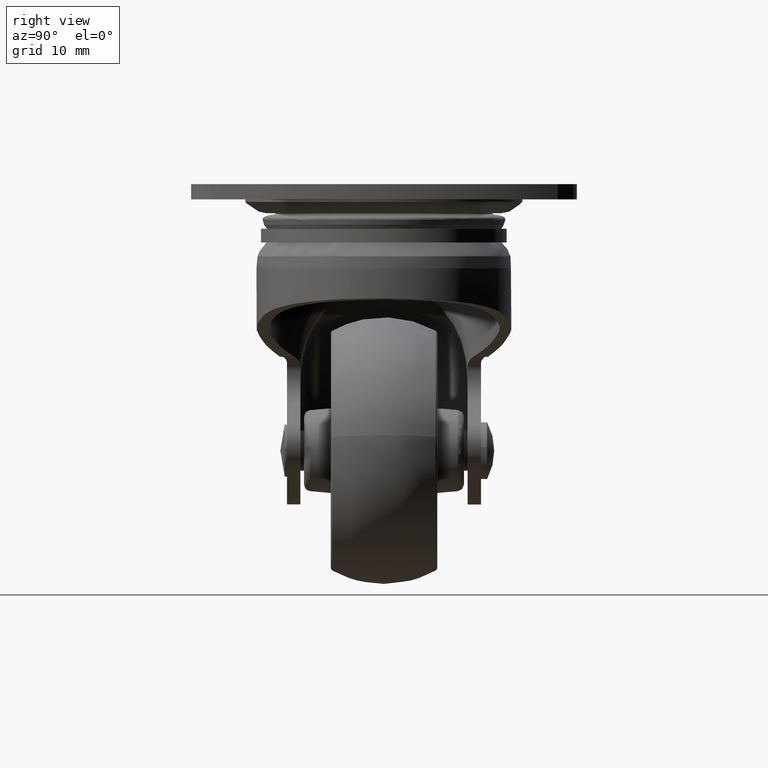
[diagram: clean part render]
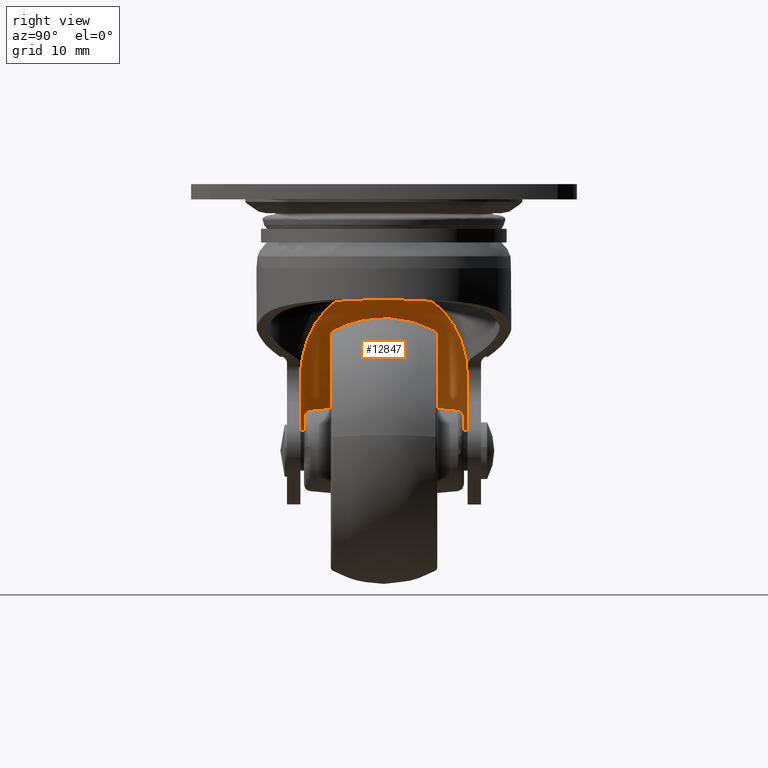
[diagram: same view with one face highlighted and labeled with its STEP entity id]
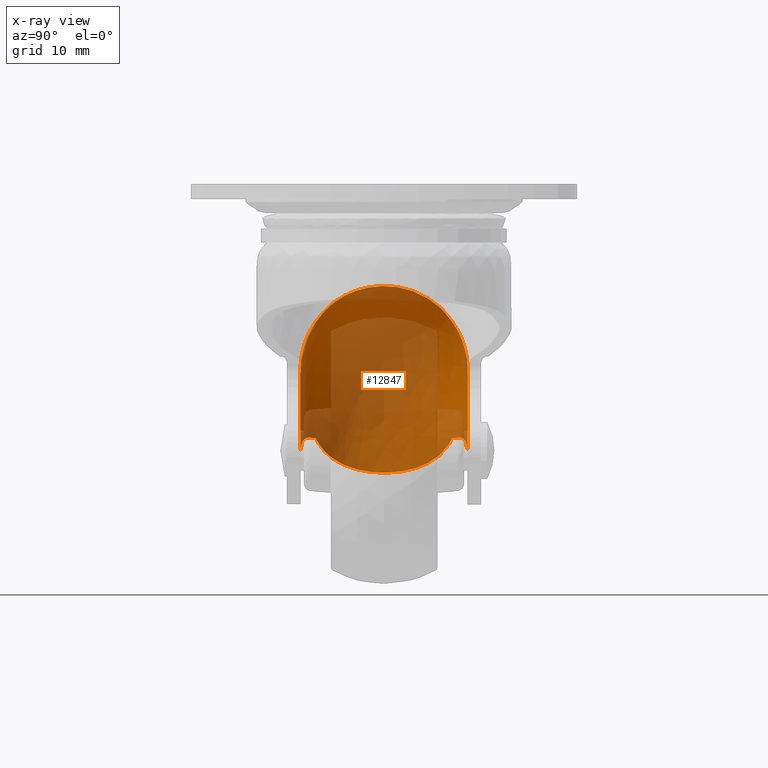
[diagram: x-ray of the same camera — body ghosted, the highlighted face saturated]
A machine part, right view. The second image highlights one B-rep face of the part: STEP entity #12847.
The next image is the same camera in x-ray: the body ghosted, the highlighted face saturated — about 71% of this face is hidden behind the body in this view.
In plain terms, the highlighted face is a freeform B-spline surface patch.
Its self-contained STEP definition (entity closure, byte-faithful):
#12061=CARTESIAN_POINT('',(-13.161448661214900,-12.550000000000001,-29.333893467984002));
#12062=VERTEX_POINT('',#12061);
#12074=CARTESIAN_POINT('',(-13.161448661214900,12.550000000000001,-29.333893467984002));
#12075=VERTEX_POINT('',#12074);
#12076=CARTESIAN_POINT('',(-13.161448661214900,12.550000000000001,-29.333893467984002));
#12077=CARTESIAN_POINT('',(-13.183847619922540,12.550000000000001,-29.099161205735172));
#12078=CARTESIAN_POINT('',(-13.211446397097101,12.545453838519130,-28.865321687266281));
#12079=CARTESIAN_POINT('',(-13.276723983359091,12.527515720516289,-28.399374500162040));
#12080=CARTESIAN_POINT('',(-13.314423820523480,12.514114597322960,-28.167150270794060));
#12081=CARTESIAN_POINT('',(-13.442002738938070,12.460872270933701,-27.473722363226589));
#12082=CARTESIAN_POINT('',(-13.545453704098851,12.408438853016721,-27.020385841915481));
#12083=CARTESIAN_POINT('',(-13.784197698013910,12.271406548507001,-26.129758595202240));
#12084=CARTESIAN_POINT('',(-13.919495426331441,12.186793034932871,-25.692472173004070));
#12085=CARTESIAN_POINT('',(-14.217633644276050,11.985161395502701,-24.832676067670072));
#12086=CARTESIAN_POINT('',(-14.380479727401600,11.868138600663540,-24.410169011000189));
#12087=CARTESIAN_POINT('',(-14.598870615136480,11.700448244436281,-23.890768907709159));
#12088=CARTESIAN_POINT('',(-14.643290744334781,11.665834551645160,-23.787334713602679));
#12089=CARTESIAN_POINT('',(-14.733131544660971,11.594759539812550,-23.582285010211042));
#12090=CARTESIAN_POINT('',(-14.869546739996149,11.485258429876980,-23.277071812442539));
#12091=CARTESIAN_POINT('',(-15.010572715484070,11.367060815563621,-22.978771425042002));
#12092=CARTESIAN_POINT('',(-15.297899419181180,11.118880768911600,-22.391020016011002));
#12093=CARTESIAN_POINT('',(-15.496471345719970,10.937749815510880,-22.010960197103799));
#12094=CARTESIAN_POINT('',(-15.903407099388209,10.542246776187399,-21.273093261511718));
#12095=CARTESIAN_POINT('',(-16.111780532400971,10.327879796527069,-20.915288642487770));
#12096=CARTESIAN_POINT('',(-16.428721978969250,9.979085969659277,-20.394879016122431));
#12097=CARTESIAN_POINT('',(-16.535117348188969,9.858251381883843,-20.224104841132299));
#12098=CARTESIAN_POINT('',(-16.748810889242812,9.607039843041411,-19.888110749921001));
#12099=CARTESIAN_POINT('',(-16.855409364195619,9.477483781565518,-19.723987708009190));
#12100=CARTESIAN_POINT('',(-17.173667519892678,9.076658168778760,-19.242999235059319));
#12101=CARTESIAN_POINT('',(-17.383792145387769,8.793264357702599,-18.937482019273300));
#12102=CARTESIAN_POINT('',(-17.795783992117901,8.191761900440010,-18.356232855721998));
#12103=CARTESIAN_POINT('',(-17.997664489061840,7.873667151216800,-18.080495973924840));
#12104=CARTESIAN_POINT('',(-18.242126275433218,7.452121857270873,-17.754813519690298));
#12105=CARTESIAN_POINT('',(-18.290623051093458,7.366612783177341,-17.690629425472221));
#12106=CARTESIAN_POINT('',(-18.386751218332531,7.193122312869709,-17.564188078783811));
#12107=CARTESIAN_POINT('',(-18.434438086910848,7.105032211052274,-17.501859384693699));
#12108=CARTESIAN_POINT('',(-18.575381042413770,6.838287048155994,-17.318715458198909));
#12109=CARTESIAN_POINT('',(-18.666686007895130,6.656879147409573,-17.201517369258049));
#12110=CARTESIAN_POINT('',(-18.931930756308919,6.101693215450641,-16.864505056274560));
#12111=CARTESIAN_POINT('',(-19.097221719177629,5.716988063362493,-16.659220913054170));
#12112=CARTESIAN_POINT('',(-19.324787152509050,5.116586678019555,-16.380814115848668));
#12113=CARTESIAN_POINT('',(-19.397242648154130,4.912554122776250,-16.292944173715171));
#12114=CARTESIAN_POINT('',(-19.500384565843330,4.600384838927234,-16.168718113736329));
#12115=CARTESIAN_POINT('',(-19.533841139421838,4.495307640482481,-16.128573525196860));
#12116=CARTESIAN_POINT('',(-19.598825352907429,4.283057052779585,-16.050855063869498));
#12117=CARTESIAN_POINT('',(-19.630403814003181,4.175700431671834,-16.013220887671110));
#12118=CARTESIAN_POINT('',(-19.782596186387011,3.635898496610632,-15.832391162301541));
#12119=CARTESIAN_POINT('',(-19.885701323642959,3.196266545270175,-15.711646167186149));
#12120=CARTESIAN_POINT('',(-20.052755774618639,2.301262016617411,-15.517220714916210));
#12121=CARTESIAN_POINT('',(-20.116717345125881,1.845893067720527,-15.443532175511679));
#12122=CARTESIAN_POINT('',(-20.170439533455131,1.266367341027908,-15.381772460023370));
#12123=CARTESIAN_POINT('',(-20.179869541585841,1.149944797667372,-15.370944102374750));
#12124=CARTESIAN_POINT('',(-20.196043547773751,0.916045771680178,-15.352383634499381));
#12125=CARTESIAN_POINT('',(-20.202796937957920,0.798342582884374,-15.344640756122400));
#12126=CARTESIAN_POINT('',(-20.218860505980199,0.445338387112968,-15.326230589783060));
#12127=CARTESIAN_POINT('',(-20.223969167337369,0.210857036659877,-15.320384700115961));
#12128=CARTESIAN_POINT('',(-20.222902204469229,-0.490089136965193,-15.321606332922180));
#12129=CARTESIAN_POINT('',(-20.200367742399781,-0.954064080090620,-15.347357179176440));
#12130=CARTESIAN_POINT('',(-20.134783631014020,-1.645152230708293,-15.422768167381429));
#12131=CARTESIAN_POINT('',(-20.107616327061631,-1.874700517823076,-15.454055352145680));
#12132=CARTESIAN_POINT('',(-20.058950606237659,-2.217797031020003,-15.510306005047880));
#12133=CARTESIAN_POINT('',(-20.041409076760679,-2.331958093552134,-15.530610719977989));
#12134=CARTESIAN_POINT('',(-20.003688291657870,-2.559869142672834,-15.574359382177891));
#12135=CARTESIAN_POINT('',(-19.983479516092139,-2.673771765845328,-15.597837713135171));
#12136=CARTESIAN_POINT('',(-19.876204085219040,-3.240335613836149,-15.722748633416680));
#12137=CARTESIAN_POINT('',(-19.770945441871518,-3.682126457274895,-15.846111820299839));
#12138=CARTESIAN_POINT('',(-19.617253038981499,-4.220777933764845,-16.028885202434260));
#12139=CARTESIAN_POINT('',(-19.585361176516869,-4.327970104260392,-16.066927683633509));
#12140=CARTESIAN_POINT('',(-19.519625651173129,-4.540298799492446,-16.145620634364761));
#12141=CARTESIAN_POINT('',(-19.485832219044202,-4.645286825818607,-16.186210661217480));
#12142=CARTESIAN_POINT('',(-19.381811727391462,-4.956836406843079,-16.311626837372060));
#12143=CARTESIAN_POINT('',(-19.308947016819602,-5.159987093488653,-16.400095001420070));
#12144=CARTESIAN_POINT('',(-19.080787271771840,-5.756560355688435,-16.679558061172639));
#12145=CARTESIAN_POINT('',(-18.915949681109709,-6.137144346281213,-16.884562316694019));
#12146=CARTESIAN_POINT('',(-18.565288240994182,-6.866941804261762,-17.330619612061351));
#12147=CARTESIAN_POINT('',(-18.379448042957019,-7.216141623980685,-17.571682705336190));
#12148=CARTESIAN_POINT('',(-18.087860030614589,-7.717701957303782,-17.960432008755230));
#12149=CARTESIAN_POINT('',(-17.988523227031099,-7.881174523378395,-18.094551441628060));
#12150=CARTESIAN_POINT('',(-17.836660628642399,-8.120913949561214,-18.302640759678450));
#12151=CARTESIAN_POINT('',(-17.785515719872190,-8.199986753809215,-18.373222913367592));
#12152=CARTESIAN_POINT('',(-17.682599458226228,-8.355919548325506,-18.516344914079561));
#12153=CARTESIAN_POINT('',(-17.630937219880501,-8.432618267559171,-18.588731918813689));
#12154=CARTESIAN_POINT('',(-17.371778122608760,-8.809970473752838,-18.954757358396350));
#12155=CARTESIAN_POINT('',(-17.161749431933160,-9.092261244093386,-19.260628252376542));
#12156=CARTESIAN_POINT('',(-16.740462264488610,-9.621629215298313,-19.898111364658561));
#12157=CARTESIAN_POINT('',(-16.529192313033398,-9.868692676275456,-20.229726701578731));
#12158=CARTESIAN_POINT('',(-16.109472468746461,-10.330242448463860,-20.919264342924048));
#12159=CARTESIAN_POINT('',(-15.901012081020260,-10.544723742850371,-21.277183814615160));
#12160=CARTESIAN_POINT('',(-15.593643092049740,-10.843231339396450,-21.834895409115781));
#12161=CARTESIAN_POINT('',(-15.491984921203020,-10.938929144728780,-22.024479965881959));
#12162=CARTESIAN_POINT('',(-15.292702021494179,-11.121204603677810,-22.407578558716509));
#12163=CARTESIAN_POINT('',(-15.194867682956650,-11.207992243857170,-22.601460699876078));
#12164=CARTESIAN_POINT('',(-14.907522879541061,-11.455822353668440,-23.190245575479160));
#12165=CARTESIAN_POINT('',(-14.724154434696739,-11.604373220587471,-23.592265069493699));
#12166=CARTESIAN_POINT('',(-14.378037257990540,-11.869887546183829,-24.416531616713151));
#12167=CARTESIAN_POINT('',(-14.215278158846830,-11.986856813543319,-24.838772066634220));
#12168=CARTESIAN_POINT('',(-14.027749352387540,-12.113553601520280,-25.380464327526180));
#12169=CARTESIAN_POINT('',(-13.991007622214500,-12.137934961643481,-25.489608699558080));
#12170=CARTESIAN_POINT('',(-13.919508496601109,-12.184533507560150,-25.708383581194749));
#12171=CARTESIAN_POINT('',(-13.884720946993150,-12.206771942325391,-25.818095198333200));
#12172=CARTESIAN_POINT('',(-13.783323123023539,-12.270340282405270,-26.148215833379410));
#12173=CARTESIAN_POINT('',(-13.719677069488201,-12.308526721275591,-26.369610123890471));
#12174=CARTESIAN_POINT('',(-13.541247876257460,-12.410668006403879,-27.037858820199190));
#12175=CARTESIAN_POINT('',(-13.438964619910990,-12.462265494294300,-27.488770489111801));
#12176=CARTESIAN_POINT('',(-13.271438815324780,-12.531925498605350,-28.402281835730619));
#12177=CARTESIAN_POINT('',(-13.206203369801001,-12.549999999999990,-28.864881754992179));
#12178=CARTESIAN_POINT('',(-13.161448661214900,-12.550000000000001,-29.333893467984019));
#12179=B_SPLINE_CURVE_WITH_KNOTS('',3,(#12076,#12077,#12078,#12079,#12080,#12081,#12082,#12083,#12084,#12085,#12086,#12087,#12088,#12089,#12090,#12091,#12092,#12093,#12094,#12095,#12096,#12097,#12098,#12099,#12100,#12101,#12102,#12103,#12104,#12105,#12106,#12107,#12108,#12109,#12110,#12111,#12112,#12113,#12114,#12115,#12116,#12117,#12118,#12119,#12120,#12121,#12122,#12123,#12124,#12125,#12126,#12127,#12128,#12129,#12130,#12131,#12132,#12133,#12134,#12135,#12136,#12137,#12138,#12139,#12140,#12141,#12142,#12143,#12144,#12145,#12146,#12147,#12148,#12149,#12150,#12151,#12152,#12153,#12154,#12155,#12156,#12157,#12158,#12159,#12160,#12161,#12162,#12163,#12164,#12165,#12166,#12167,#12168,#12169,#12170,#12171,#12172,#12173,#12174,#12175,#12176,#12177,#12178),.UNSPECIFIED.,.F.,.U.,(4,2,2,2,2,2,2,1,2,2,2,2,2,2,2,2,2,2,2,2,2,2,2,2,2,2,2,2,2,2,2,2,2,2,2,2,2,2,2,2,2,2,2,2,2,2,2,2,2,2,2,4),(0.0,0.015625000000000,0.031249999999999,0.062499999999999,0.093749999999998,0.124999999999997,0.132812499999997,0.140624999999996,0.156249999999996,0.187499999999996,0.218749999999996,0.234374999999996,0.249999999999996,0.281249999999996,0.312499999999995,0.320312499999995,0.328124999999996,0.343749999999996,0.374999999999995,0.390624999999995,0.398437499999995,0.406249999999995,0.437499999999995,0.468749999999995,0.476562499999995,0.484374999999995,0.499999999999995,0.531249999999995,0.546874999999995,0.554687499999995,0.562499999999995,0.593749999999996,0.601562499999996,0.609374999999996,0.624999999999996,0.656249999999996,0.687499999999997,0.703124999999997,0.710937499999997,0.718749999999997,0.749999999999997,0.781249999999998,0.812499999999998,0.828124999999998,0.843749999999998,0.874999999999999,0.906249999999999,0.914062499999999,0.921874999999999,0.937499999999999,0.968750000000000,1.0),.UNSPECIFIED.);
#12180=EDGE_CURVE('',#12075,#12062,#12179,.T.);
#12311=CARTESIAN_POINT('',(-31.157816983188400,12.550000000000001,-40.204930454616651));
#12312=VERTEX_POINT('',#12311);
#12313=CARTESIAN_POINT('',(-13.161448661214900,12.550000000000001,-29.333893467984002));
#12314=CARTESIAN_POINT('',(-19.298551224521344,12.549999999999999,-25.974486895426629));
#12315=CARTESIAN_POINT('',(-25.287140913190800,12.550000000000001,-29.592004543351258));
#12316=CARTESIAN_POINT('',(-31.275730601860250,12.549999999999999,-33.209522191275880));
#12317=CARTESIAN_POINT('',(-31.157816983188400,12.550000000000001,-40.204930454616651));
#12325=(BOUNDED_CURVE()B_SPLINE_CURVE(2,(#12313,#12314,#12315,#12316,#12317),.UNSPECIFIED.,.F.,.U.)B_SPLINE_CURVE_WITH_KNOTS((3,2,3),(0.0,0.500000000000000,1.0),.UNSPECIFIED.)CURVE()GEOMETRIC_REPRESENTATION_ITEM()RATIONAL_B_SPLINE_CURVE((1.0,0.866762596245654,1.0,0.866762596245654,1.0))REPRESENTATION_ITEM(''));
#12326=EDGE_CURVE('',#12075,#12312,#12325,.T.);
#12480=CARTESIAN_POINT('',(-31.157816983188400,-12.550000000000001,-40.204930454616601));
#12481=VERTEX_POINT('',#12480);
#12495=CARTESIAN_POINT('',(-13.161448661214900,-12.550000000000001,-29.333893467984002));
#12496=CARTESIAN_POINT('',(-19.298551224521329,-12.550000000000002,-25.974486895426640));
#12497=CARTESIAN_POINT('',(-25.287140913190779,-12.550000000000001,-29.592004543351251));
#12498=CARTESIAN_POINT('',(-31.275730601860221,-12.550000000000002,-33.209522191275859));
#12499=CARTESIAN_POINT('',(-31.157816983188400,-12.550000000000001,-40.204930454616601));
#12507=(BOUNDED_CURVE()B_SPLINE_CURVE(2,(#12495,#12496,#12497,#12498,#12499),.UNSPECIFIED.,.F.,.U.)B_SPLINE_CURVE_WITH_KNOTS((3,2,3),(0.0,0.500000000000000,1.0),.UNSPECIFIED.)CURVE()GEOMETRIC_REPRESENTATION_ITEM()RATIONAL_B_SPLINE_CURVE((1.0,0.866762596245655,1.0,0.866762596245655,1.0))REPRESENTATION_ITEM(''));
#12508=EDGE_CURVE('',#12062,#12481,#12507,.T.);
#12596=CARTESIAN_POINT('',(-13.079754561597568,-12.401477908493407,-31.651622220281627));
#12597=CARTESIAN_POINT('',(-12.072294924328620,-12.671826574153915,-30.230962597762851));
#12598=CARTESIAN_POINT('',(-11.060730744783031,-12.452003397044214,-28.804514994003327));
#12599=CARTESIAN_POINT('',(-4.706506860146702,-11.071165966625729,-19.844166637201337));
#12600=CARTESIAN_POINT('',(-4.706506860146702,0.0,-19.844166637201333));
#12601=CARTESIAN_POINT('',(-4.706506860146702,11.071165966625722,-19.844166637201337));
#12602=CARTESIAN_POINT('',(-11.060730744783031,12.452003397044214,-28.804514994003327));
#12603=CARTESIAN_POINT('',(-12.072294803408203,12.671826547876687,-30.230962427248095));
#12604=CARTESIAN_POINT('',(-13.079754325396504,12.401477971877224,-31.651621887204936));
#12605=CARTESIAN_POINT('',(-15.739433082929963,-12.401477908493403,-29.765513319964686));
#12606=CARTESIAN_POINT('',(-15.184576093006081,-12.671826574153924,-28.023890891370804));
#12607=CARTESIAN_POINT('',(-14.627458532148768,-12.452003397044212,-26.275172830730085));
#12608=CARTESIAN_POINT('',(-11.127878591170452,-11.071165966625728,-15.290455999999903));
#12609=CARTESIAN_POINT('',(-11.127878591170454,0.0,-15.290455999999903));
#12610=CARTESIAN_POINT('',(-11.127878591170452,11.071165966625721,-15.290455999999903));
#12611=CARTESIAN_POINT('',(-14.627458532148768,12.452003397044212,-26.275172830730085));
#12612=CARTESIAN_POINT('',(-15.184576026409335,12.671826547876691,-28.023890682332457));
#12613=CARTESIAN_POINT('',(-15.739432952842552,12.401477971877220,-29.765512911637583));
#12614=CARTESIAN_POINT('',(-19.000000000000007,-12.401477908493412,-29.765513319964679));
#12615=CARTESIAN_POINT('',(-18.999999999999996,-12.671826574153917,-28.023890891370808));
#12616=CARTESIAN_POINT('',(-19.0,-12.452003397044219,-26.275172830730082));
#12617=CARTESIAN_POINT('',(-19.0,-11.071165966625724,-15.290455999999894));
#12618=CARTESIAN_POINT('',(-19.0,0.0,-15.290455999999899));
#12619=CARTESIAN_POINT('',(-19.0,11.071165966625721,-15.290455999999894));
#12620=CARTESIAN_POINT('',(-19.0,12.452003397044219,-26.275172830730082));
#12621=CARTESIAN_POINT('',(-18.999999999999993,12.671826547876682,-28.023890682332453));
#12622=CARTESIAN_POINT('',(-19.000000000000004,12.401477971877226,-29.765512911637583));
#12623=CARTESIAN_POINT('',(-29.234486680035321,-12.401477908493407,-29.765513319964690));
#12624=CARTESIAN_POINT('',(-30.976109108629188,-12.671826574153918,-28.023890891370804));
#12625=CARTESIAN_POINT('',(-32.724827169269915,-12.452003397044216,-26.275172830730089));
#12626=CARTESIAN_POINT('',(-43.709544000000108,-11.071165966625726,-15.290455999999898));
#12627=CARTESIAN_POINT('',(-43.709544000000108,0.0,-15.290455999999894));
#12628=CARTESIAN_POINT('',(-43.709544000000108,11.071165966625721,-15.290455999999898));
#12629=CARTESIAN_POINT('',(-32.724827169269915,12.452003397044216,-26.275172830730089));
#12630=CARTESIAN_POINT('',(-30.976109317667554,12.671826547876687,-28.023890682332446));
#12631=CARTESIAN_POINT('',(-29.234487088362428,12.401477971877226,-29.765512911637590));
#12632=CARTESIAN_POINT('',(-29.234486680035300,-12.401477908493412,-40.0));
#12633=CARTESIAN_POINT('',(-30.976109108629192,-12.671826574153917,-40.0));
#12634=CARTESIAN_POINT('',(-32.724827169269922,-12.452003397044219,-40.0));
#12635=CARTESIAN_POINT('',(-43.709544000000101,-11.071165966625724,-40.000000000000007));
#12636=CARTESIAN_POINT('',(-43.709544000000101,0.0,-40.0));
#12637=CARTESIAN_POINT('',(-43.709544000000101,11.071165966625721,-40.000000000000007));
#12638=CARTESIAN_POINT('',(-32.724827169269922,12.452003397044219,-40.0));
#12639=CARTESIAN_POINT('',(-30.976109317667547,12.671826547876682,-39.999999999999993));
#12640=CARTESIAN_POINT('',(-29.234487088362410,12.401477971877226,-39.999999999999993));
#12641=CARTESIAN_POINT('',(-29.234486680035307,-12.401477908493407,-41.247225049249039));
#12642=CARTESIAN_POINT('',(-30.976109108629192,-12.671826574153917,-41.459467752492166));
#12643=CARTESIAN_POINT('',(-32.724827169269915,-12.452003397044216,-41.672575164470125));
#12644=CARTESIAN_POINT('',(-43.709544000000115,-11.071165966625728,-43.011226961918872));
#12645=CARTESIAN_POINT('',(-43.709544000000101,0.0,-43.011226961918858));
#12646=CARTESIAN_POINT('',(-43.709544000000115,11.071165966625721,-43.011226961918872));
#12647=CARTESIAN_POINT('',(-32.724827169269915,12.452003397044216,-41.672575164470125));
#12648=CARTESIAN_POINT('',(-30.976109317667550,12.671826547876689,-41.459467777966609));
#12649=CARTESIAN_POINT('',(-29.234487088362425,12.401477971877231,-41.247225099009803));
#12650=CARTESIAN_POINT('',(-28.934949132849269,-12.401477908493401,-42.457946974919864));
#12651=CARTESIAN_POINT('',(-30.625598676657152,-12.671826574153920,-42.876220574138671));
#12652=CARTESIAN_POINT('',(-32.323136181303212,-12.452003397044214,-43.296198282988897));
#12653=CARTESIAN_POINT('',(-42.986358125296306,-11.071165966625726,-45.934322924561208));
#12654=CARTESIAN_POINT('',(-42.986358125296313,0.0,-45.934322924561222));
#12655=CARTESIAN_POINT('',(-42.986358125296306,11.071165966625719,-45.934322924561208));
#12656=CARTESIAN_POINT('',(-32.323136181303212,12.452003397044214,-43.296198282988897));
#12657=CARTESIAN_POINT('',(-30.625598879577499,12.671826547876680,-42.876220624341975));
#12658=CARTESIAN_POINT('',(-28.934949529225683,12.401477971877231,-42.457947072985021));
#12666=(BOUNDED_SURFACE()B_SPLINE_SURFACE(2,2,((#12596,#12605,#12614,#12623,#12632,#12641,#12650),(#12597,#12606,#12615,#12624,#12633,#12642,#12651),(#12598,#12607,#12616,#12625,#12634,#12643,#12652),(#12599,#12608,#12617,#12626,#12635,#12644,#12653),(#12600,#12609,#12618,#12627,#12636,#12645,#12654),(#12601,#12610,#12619,#12628,#12637,#12646,#12655),(#12602,#12611,#12620,#12629,#12638,#12647,#12656),(#12603,#12612,#12621,#12630,#12639,#12648,#12657),(#12604,#12613,#12622,#12631,#12640,#12649,#12658)),.UNSPECIFIED.,.F.,.F.,.U.)B_SPLINE_SURFACE_WITH_KNOTS((3,2,2,2,3),(3,2,2,3),(10.355779874515530,14.181410918841070,33.159220912622317,52.137030906403581,55.962661516475677),(14.521328917884830,30.816500978376659,71.756613957795778,78.473311432456967),.UNSPECIFIED.)GEOMETRIC_REPRESENTATION_ITEM()RATIONAL_B_SPLINE_SURFACE(((0.790440358181194,0.812302596553384,0.919496283482360,0.650182057326205,0.919496283482360,0.875312180140419,0.845625899776455),(0.816306254844045,0.838883900005248,0.949585328916674,0.671458225392239,0.949585328916674,0.903955371451327,0.873297655036241),(0.859644973427844,0.883421293968686,1.0,0.707106781186548,1.0,0.951947491103929,0.919662118234845),(0.644654568674293,0.662484619610088,0.749907913849279,0.530264971148282,0.749907913849279,0.713872957147802,0.689661900531702),(0.859644973427844,0.883421293968686,1.0,0.707106781186548,1.0,0.951947491103929,0.919662118234845),(0.644654568674293,0.662484619610088,0.749907913849279,0.530264971148282,0.749907913849279,0.713872957147802,0.689661900531702),(0.859644973427844,0.883421293968686,1.0,0.707106781186548,1.0,0.951947491103929,0.919662118234845),(0.816306259763491,0.838883905060759,0.949585334639323,0.671458229438763,0.949585334639323,0.903955376898988,0.873297660299144),(0.790440364053352,0.812302602587956,0.919496290313270,0.650182062156388,0.919496290313270,0.875312186643087,0.845625906058584)))REPRESENTATION_ITEM('')SURFACE());
#12667=ORIENTED_EDGE('',*,*,#12326,.F.);
#12668=ORIENTED_EDGE('',*,*,#12180,.T.);
#12669=ORIENTED_EDGE('',*,*,#12508,.T.);
#12670=CARTESIAN_POINT('',(-33.641160979881150,-12.290201791135280,-38.687122837785353));
#12671=VERTEX_POINT('',#12670);
#12672=CARTESIAN_POINT('',(-31.157816983188400,-12.550000000000001,-40.204930454616601));
#12673=CARTESIAN_POINT('',(-31.975587314993110,-12.549999960518059,-39.690391385173179));
#12674=CARTESIAN_POINT('',(-32.802993478127412,-12.471940003815609,-39.184555547659407));
#12675=CARTESIAN_POINT('',(-33.641160979881150,-12.290201791135280,-38.687122837785353));
#12676=QUASI_UNIFORM_CURVE('',3,(#12672,#12673,#12674,#12675),.UNSPECIFIED.,.F.,.U.);
#12677=EDGE_CURVE('',#12481,#12671,#12676,.T.);
#12678=ORIENTED_EDGE('',*,*,#12677,.T.);
#12679=CARTESIAN_POINT('',(-34.332681015261343,-12.123267493232641,-38.515594996062703));
#12680=VERTEX_POINT('',#12679);
#12681=CARTESIAN_POINT('',(-34.332681015261343,-12.123267493232641,-38.515594996062703));
#12682=CARTESIAN_POINT('',(-34.223645347811122,-12.153635304452211,-38.566771937775883));
#12683=CARTESIAN_POINT('',(-34.111463036186663,-12.182800057703689,-38.606434184133143));
#12684=CARTESIAN_POINT('',(-33.881001356680663,-12.238516607363740,-38.663721682085857));
#12685=CARTESIAN_POINT('',(-33.762723274458999,-12.265068960534389,-38.681351574902649));
#12686=CARTESIAN_POINT('',(-33.641160979881157,-12.290201791135310,-38.687122837785353));
#12687=B_SPLINE_CURVE_WITH_KNOTS('',3,(#12681,#12682,#12683,#12684,#12685,#12686),.UNSPECIFIED.,.F.,.U.,(4,2,4),(0.0,0.500000000000000,1.0),.UNSPECIFIED.);
#12688=EDGE_CURVE('',#12680,#12671,#12687,.T.);
#12689=ORIENTED_EDGE('',*,*,#12688,.F.);
#12690=CARTESIAN_POINT('',(-36.309936297732747,-11.394542904449001,-38.049545222870449));
#12691=VERTEX_POINT('',#12690);
#12692=CARTESIAN_POINT('',(-34.332681015261372,-12.123267493232699,-38.515594996062703));
#12693=CARTESIAN_POINT('',(-34.653598652486089,-12.033887900953021,-38.364970156555948));
#12694=CARTESIAN_POINT('',(-34.980119899377222,-11.928882690171850,-38.253438939596371));
#12695=CARTESIAN_POINT('',(-35.475994936015127,-11.746768175669450,-38.138043992597517));
#12696=CARTESIAN_POINT('',(-35.642321959289831,-11.681956087693790,-38.108306987736107));
#12697=CARTESIAN_POINT('',(-35.893215739733492,-11.578337454331390,-38.076559177929063));
#12698=CARTESIAN_POINT('',(-35.977013886851367,-11.542753981177890,-38.068141216140390));
#12699=CARTESIAN_POINT('',(-36.143833420422951,-11.469959997982169,-38.055645485538832));
#12700=CARTESIAN_POINT('',(-36.227005282544162,-11.432688135536861,-38.051547047378840));
#12701=CARTESIAN_POINT('',(-36.309936297732747,-11.394542904449001,-38.049545222870449));
#12702=B_SPLINE_CURVE_WITH_KNOTS('',3,(#12692,#12693,#12694,#12695,#12696,#12697,#12698,#12699,#12700,#12701),.UNSPECIFIED.,.F.,.U.,(4,2,2,2,4),(0.0,0.500000000000000,0.750000000000000,0.875000000000000,1.0),.UNSPECIFIED.);
#12703=EDGE_CURVE('',#12680,#12691,#12702,.T.);
#12704=ORIENTED_EDGE('',*,*,#12703,.T.);
#12705=CARTESIAN_POINT('',(-38.273473396496200,-10.278730738917041,-38.168995567753193));
#12706=VERTEX_POINT('',#12705);
#12707=CARTESIAN_POINT('',(-36.309936297732747,-11.394542904449001,-38.049545222870449));
#12708=CARTESIAN_POINT('',(-36.654521111919223,-11.236046650134069,-38.041230246912207));
#12709=CARTESIAN_POINT('',(-36.990243022378927,-11.063616876641181,-38.048448359455463));
#12710=CARTESIAN_POINT('',(-37.644636296708264,-10.691610030561259,-38.089573976939562));
#12711=CARTESIAN_POINT('',(-37.963304614578277,-10.492029476949179,-38.123499035381407));
#12712=CARTESIAN_POINT('',(-38.273473396496200,-10.278730738917041,-38.168995567753193));
#12713=B_SPLINE_CURVE_WITH_KNOTS('',3,(#12707,#12708,#12709,#12710,#12711,#12712),.UNSPECIFIED.,.F.,.U.,(4,2,4),(0.0,0.500000000000000,1.0),.UNSPECIFIED.);
#12714=EDGE_CURVE('',#12691,#12706,#12713,.T.);
#12715=ORIENTED_EDGE('',*,*,#12714,.T.);
#12716=CARTESIAN_POINT('',(-38.990632415442150,-9.787020269318219,-39.001695045220352));
#12717=VERTEX_POINT('',#12716);
#12718=CARTESIAN_POINT('',(-38.273473396496200,-10.278730738917041,-38.168995567753193));
#12719=CARTESIAN_POINT('',(-38.411170584716821,-10.190617171326229,-38.288490816608643));
#12720=CARTESIAN_POINT('',(-38.539771968889767,-10.105097599769019,-38.417351583425713));
#12721=CARTESIAN_POINT('',(-38.778983992471957,-9.940618575859828,-38.694441268739013));
#12722=CARTESIAN_POINT('',(-38.889604825567808,-9.861646432794737,-38.842653914041982));
#12723=CARTESIAN_POINT('',(-38.990632415442150,-9.787020269318219,-39.001695045220352));
#12724=B_SPLINE_CURVE_WITH_KNOTS('',3,(#12718,#12719,#12720,#12721,#12722,#12723),.UNSPECIFIED.,.F.,.U.,(4,2,4),(0.0,0.500000000000000,0.999999769878188),.UNSPECIFIED.);
#12725=EDGE_CURVE('',#12706,#12717,#12724,.T.);
#12726=ORIENTED_EDGE('',*,*,#12725,.T.);
#12727=CARTESIAN_POINT('',(-38.990630976671603,9.787021459366850,-39.001695959185149));
#12728=VERTEX_POINT('',#12727);
#12729=CARTESIAN_POINT('',(-38.990630976671603,9.787021459366850,-39.001695959185149));
#12730=CARTESIAN_POINT('',(-39.288993677966531,9.562006643564985,-39.355919401635319));
#12731=CARTESIAN_POINT('',(-39.583609206239743,9.311210438640156,-39.689070081056812));
#12732=CARTESIAN_POINT('',(-40.160260491850650,8.754972560939475,-40.315029654420663));
#12733=CARTESIAN_POINT('',(-40.442314747536592,8.449560925788552,-40.607849924627402));
#12734=CARTESIAN_POINT('',(-40.783548513886487,8.030974399839327,-40.949355357571051));
#12735=CARTESIAN_POINT('',(-40.851226488175890,7.945411582078039,-41.016428179176422));
#12736=CARTESIAN_POINT('',(-40.985347564712463,7.770506921104625,-41.148124163342047));
#12737=CARTESIAN_POINT('',(-41.051927173366039,7.680971755287967,-41.212878087348891));
#12738=CARTESIAN_POINT('',(-41.248427771846849,7.408282555905510,-41.402285793588021));
#12739=CARTESIAN_POINT('',(-41.375129631431307,7.221085885086739,-41.522121762224643));
#12740=CARTESIAN_POINT('',(-41.741784581498457,6.643514656175595,-41.863414714080093));
#12741=CARTESIAN_POINT('',(-41.968327098355161,6.237218012157707,-42.066734901682302));
#12742=CARTESIAN_POINT('',(-42.278517920884532,5.595828503154815,-42.338338510820762));
#12743=CARTESIAN_POINT('',(-42.376968863386352,5.376693809676836,-42.423290842407880));
#12744=CARTESIAN_POINT('',(-42.516773449211961,5.039831844461711,-42.542531512786361));
#12745=CARTESIAN_POINT('',(-42.562062138085572,4.926183444152608,-42.580912466219502));
#12746=CARTESIAN_POINT('',(-42.649926482853068,4.696124794978926,-42.654957044260001));
#12747=CARTESIAN_POINT('',(-42.692510309039157,4.579664154245539,-42.690626533065547));
#12748=CARTESIAN_POINT('',(-42.896771094144128,3.995277264738415,-42.860835427628693));
#12749=CARTESIAN_POINT('',(-43.034062784457078,3.517352537985829,-42.972388711513140));
#12750=CARTESIAN_POINT('',(-43.256124428224147,2.541449465855905,-43.150859046308632));
#12751=CARTESIAN_POINT('',(-43.340905382379937,2.043472500861859,-43.217770067142212));
#12752=CARTESIAN_POINT('',(-43.412390976105961,1.408175184641963,-43.273966938009622));
#12753=CARTESIAN_POINT('',(-43.424976487564557,1.280216576087910,-43.283839974339543));
#12754=CARTESIAN_POINT('',(-43.446502079105272,1.024438048815317,-43.300706400954383));
#12755=CARTESIAN_POINT('',(-43.455447497552129,0.896664021942407,-43.307704088448119));
#12756=CARTESIAN_POINT('',(-43.476902049783277,0.513682281884785,-43.324475531683532));
#12757=CARTESIAN_POINT('',(-43.484034965497287,0.258814443791981,-43.330035818415780));
#12758=CARTESIAN_POINT('',(-43.484278662286250,-0.504454425801323,-43.330225878569522));
#12759=CARTESIAN_POINT('',(-43.456316956866353,-1.011527898232405,-43.308490100568889));
#12760=CARTESIAN_POINT('',(-43.372073373449261,-1.769449775164073,-43.242275537882719));
#12761=CARTESIAN_POINT('',(-43.336921458814992,-2.021640589195433,-43.214571261848597));
#12762=CARTESIAN_POINT('',(-43.273378466315002,-2.399231570420937,-43.164164815028592));
#12763=CARTESIAN_POINT('',(-43.250447480143123,-2.524624434768511,-43.145927957021577));
#12764=CARTESIAN_POINT('',(-43.201359420648743,-2.773298891827075,-43.106753830216711));
#12765=CARTESIAN_POINT('',(-43.175172293642852,-2.896761925073797,-43.085792735761977));
#12766=CARTESIAN_POINT('',(-43.036182568029957,-3.509754695926981,-42.974109226266727));
#12767=CARTESIAN_POINT('',(-42.899305537422279,-3.986380655834871,-42.862890032348787));
#12768=CARTESIAN_POINT('',(-42.657432990640807,-4.680807921902177,-42.661422788633800));
#12769=CARTESIAN_POINT('',(-42.570698507010668,-4.908852531131845,-42.588466944878377));
#12770=CARTESIAN_POINT('',(-42.431533636830572,-5.245679609452610,-42.469853342979427));
#12771=CARTESIAN_POINT('',(-42.383633888967871,-5.357081235883142,-42.428783712096731));
#12772=CARTESIAN_POINT('',(-42.284817538373410,-5.578111506521057,-42.343478441474360));
#12773=CARTESIAN_POINT('',(-42.233790602035022,-5.687964449045004,-42.299145924312072));
#12774=CARTESIAN_POINT('',(-41.972657346841054,-6.229556584226855,-42.070628617639542));
#12775=CARTESIAN_POINT('',(-41.745111996104797,-6.637693031425621,-41.866421425246081));
#12776=CARTESIAN_POINT('',(-41.258113663921193,-7.405985274463511,-41.413285550832910));
#12777=CARTESIAN_POINT('',(-40.998633312842372,-7.766117373345595,-41.164347082343191));
#12778=CARTESIAN_POINT('',(-40.656970846196039,-8.186476705319631,-40.822734584419543));
#12779=CARTESIAN_POINT('',(-40.587771112800617,-8.269054390151451,-40.752885480653291));
#12780=CARTESIAN_POINT('',(-40.447698581193073,-8.431212098185984,-40.610053782201909));
#12781=CARTESIAN_POINT('',(-40.377036532001547,-8.510543390177034,-40.537284331404358));
#12782=CARTESIAN_POINT('',(-40.163964273763497,-8.742682167431546,-40.315568366273403));
#12783=CARTESIAN_POINT('',(-40.020199352419482,-8.889952083638297,-40.162940603212327));
#12784=CARTESIAN_POINT('',(-39.584821219891062,-9.310284397235941,-39.690480312099908));
#12785=CARTESIAN_POINT('',(-39.289136016345772,-9.561899147327074,-39.356085811793463));
#12786=CARTESIAN_POINT('',(-38.990632415442150,-9.787020269318219,-39.001695045220352));
#12787=B_SPLINE_CURVE_WITH_KNOTS('',3,(#12729,#12730,#12731,#12732,#12733,#12734,#12735,#12736,#12737,#12738,#12739,#12740,#12741,#12742,#12743,#12744,#12745,#12746,#12747,#12748,#12749,#12750,#12751,#12752,#12753,#12754,#12755,#12756,#12757,#12758,#12759,#12760,#12761,#12762,#12763,#12764,#12765,#12766,#12767,#12768,#12769,#12770,#12771,#12772,#12773,#12774,#12775,#12776,#12777,#12778,#12779,#12780,#12781,#12782,#12783,#12784,#12785,#12786),.UNSPECIFIED.,.F.,.U.,(4,2,2,2,2,2,2,2,2,2,2,2,2,2,2,2,2,2,2,2,2,2,2,2,2,2,2,2,4),(9.078716E-009,0.062499999999998,0.124999999999995,0.140624999999995,0.156249999999994,0.187499999999993,0.249999999999993,0.281249999999992,0.296874999999992,0.312499999999992,0.374999999999990,0.437499999999989,0.453124999999989,0.468749999999988,0.499999999999988,0.562499999999986,0.593749999999986,0.609374999999986,0.624999999999985,0.687499999999986,0.718749999999986,0.734374999999986,0.749999999999986,0.812499999999989,0.874999999999991,0.890624999999992,0.906249999999993,0.937499999999995,1.0),.UNSPECIFIED.);
#12788=EDGE_CURVE('',#12728,#12717,#12787,.T.);
#12789=ORIENTED_EDGE('',*,*,#12788,.F.);
#12790=CARTESIAN_POINT('',(-38.273473558090899,10.278730553220459,-38.168994465942902));
#12791=VERTEX_POINT('',#12790);
#12792=CARTESIAN_POINT('',(-38.990630976671603,9.787021459366850,-39.001695959185149));
#12793=CARTESIAN_POINT('',(-38.889603618854522,9.861647420337764,-38.842654438520050));
#12794=CARTESIAN_POINT('',(-38.778983011823087,9.940619362952639,-38.694441410105412));
#12795=CARTESIAN_POINT('',(-38.539771509655800,10.105097932641939,-38.417351065812312));
#12796=CARTESIAN_POINT('',(-38.411170433152847,10.190617245937069,-38.288490009864212));
#12797=CARTESIAN_POINT('',(-38.273473558090899,10.278730553220459,-38.168994465942902));
#12798=B_SPLINE_CURVE_WITH_KNOTS('',3,(#12792,#12793,#12794,#12795,#12796,#12797),.UNSPECIFIED.,.F.,.U.,(4,2,4),(0.0,0.500000000000000,0.999999888189541),.UNSPECIFIED.);
#12799=EDGE_CURVE('',#12728,#12791,#12798,.T.);
#12800=ORIENTED_EDGE('',*,*,#12799,.T.);
#12801=CARTESIAN_POINT('',(-36.309936312717653,11.394542929672140,-38.049545843854247));
#12802=VERTEX_POINT('',#12801);
#12803=CARTESIAN_POINT('',(-38.273473558090899,10.278730553220459,-38.168994465942902));
#12804=CARTESIAN_POINT('',(-37.963304756435377,10.492029323283001,-38.123498114315353));
#12805=CARTESIAN_POINT('',(-37.644636417757788,10.691609907168820,-38.089573237796380));
#12806=CARTESIAN_POINT('',(-36.990243099733974,11.063616810453830,-38.048447987116433));
#12807=CARTESIAN_POINT('',(-36.654521166388051,11.236046610878750,-38.041230059449518));
#12808=CARTESIAN_POINT('',(-36.309936312717653,11.394542929672140,-38.049545843854247));
#12809=B_SPLINE_CURVE_WITH_KNOTS('',3,(#12803,#12804,#12805,#12806,#12807,#12808),.UNSPECIFIED.,.F.,.U.,(4,2,4),(0.0,0.500000000000000,1.0),.UNSPECIFIED.);
#12810=EDGE_CURVE('',#12791,#12802,#12809,.T.);
#12811=ORIENTED_EDGE('',*,*,#12810,.T.);
#12812=CARTESIAN_POINT('',(-34.332681127488399,12.123267469501601,-38.515595235170800));
#12813=VERTEX_POINT('',#12812);
#12814=CARTESIAN_POINT('',(-36.309936312717682,11.394542929672230,-38.049545843854240));
#12815=CARTESIAN_POINT('',(-35.978451013951442,11.547013902868530,-38.057544897104037));
#12816=CARTESIAN_POINT('',(-35.647070215707821,11.683764949004409,-38.098653033526553));
#12817=CARTESIAN_POINT('',(-35.151133155296947,11.866161455880100,-38.213437952413713));
#12818=CARTESIAN_POINT('',(-34.986015495183914,11.923158728990570,-38.260611027965808));
#12819=CARTESIAN_POINT('',(-34.738835080168009,12.002961477289549,-38.345808240741960));
#12820=CARTESIAN_POINT('',(-34.656598183013692,12.028584858910570,-38.376606195539189));
#12821=CARTESIAN_POINT('',(-34.493695000422854,12.077544908084541,-38.442655154213519));
#12822=CARTESIAN_POINT('',(-34.412863580554912,12.100935641692580,-38.477960773084753));
#12823=CARTESIAN_POINT('',(-34.332681127488399,12.123267469501601,-38.515595235170800));
#12824=B_SPLINE_CURVE_WITH_KNOTS('',3,(#12814,#12815,#12816,#12817,#12818,#12819,#12820,#12821,#12822,#12823),.UNSPECIFIED.,.F.,.U.,(4,2,2,2,4),(0.0,0.499999999999995,0.749999999999997,0.874999999999999,1.0),.UNSPECIFIED.);
#12825=EDGE_CURVE('',#12802,#12813,#12824,.T.);
#12826=ORIENTED_EDGE('',*,*,#12825,.T.);
#12827=CARTESIAN_POINT('',(-33.641160348854797,12.290201901417401,-38.687121774515496));
#12828=VERTEX_POINT('',#12827);
#12829=CARTESIAN_POINT('',(-33.641160348854797,12.290201901417401,-38.687121774515496));
#12830=CARTESIAN_POINT('',(-33.762722764555711,12.265069053423590,-38.681350712789133));
#12831=CARTESIAN_POINT('',(-33.881000963668981,12.238516681079300,-38.663721005802707));
#12832=CARTESIAN_POINT('',(-34.111462869856787,12.182800089929721,-38.606433853940040));
#12833=CARTESIAN_POINT('',(-34.223645291262088,12.153635314360811,-38.566771767805953));
#12834=CARTESIAN_POINT('',(-34.332681127488399,12.123267469501601,-38.515595235170800));
#12835=B_SPLINE_CURVE_WITH_KNOTS('',3,(#12829,#12830,#12831,#12832,#12833,#12834),.UNSPECIFIED.,.F.,.U.,(4,2,4),(0.0,0.500000000000000,1.0),.UNSPECIFIED.);
#12836=EDGE_CURVE('',#12828,#12813,#12835,.T.);
#12837=ORIENTED_EDGE('',*,*,#12836,.F.);
#12838=CARTESIAN_POINT('',(-33.641160348854847,12.290201901417420,-38.687121774515568));
#12839=CARTESIAN_POINT('',(-32.808117631821688,12.470828929572409,-39.181513527224880));
#12840=CARTESIAN_POINT('',(-31.980203429928171,12.550000000000010,-39.687486452934962));
#12841=CARTESIAN_POINT('',(-31.157816983188440,12.550000000000001,-40.204930454616708));
#12842=QUASI_UNIFORM_CURVE('',3,(#12838,#12839,#12840,#12841),.UNSPECIFIED.,.F.,.U.);
#12843=EDGE_CURVE('',#12828,#12312,#12842,.T.);
#12844=ORIENTED_EDGE('',*,*,#12843,.T.);
#12845=EDGE_LOOP('',(#12667,#12668,#12669,#12678,#12689,#12704,#12715,#12726,#12789,#12800,#12811,#12826,#12837,#12844));
#12846=FACE_OUTER_BOUND('',#12845,.T.);
#12847=ADVANCED_FACE('',(#12846),#12666,.F.);